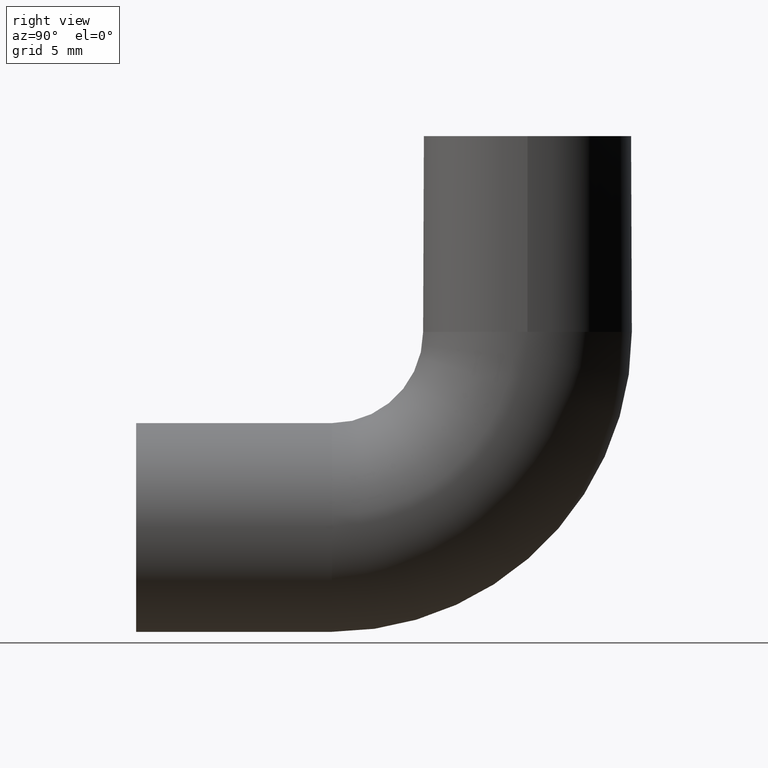
[diagram: clean part render]
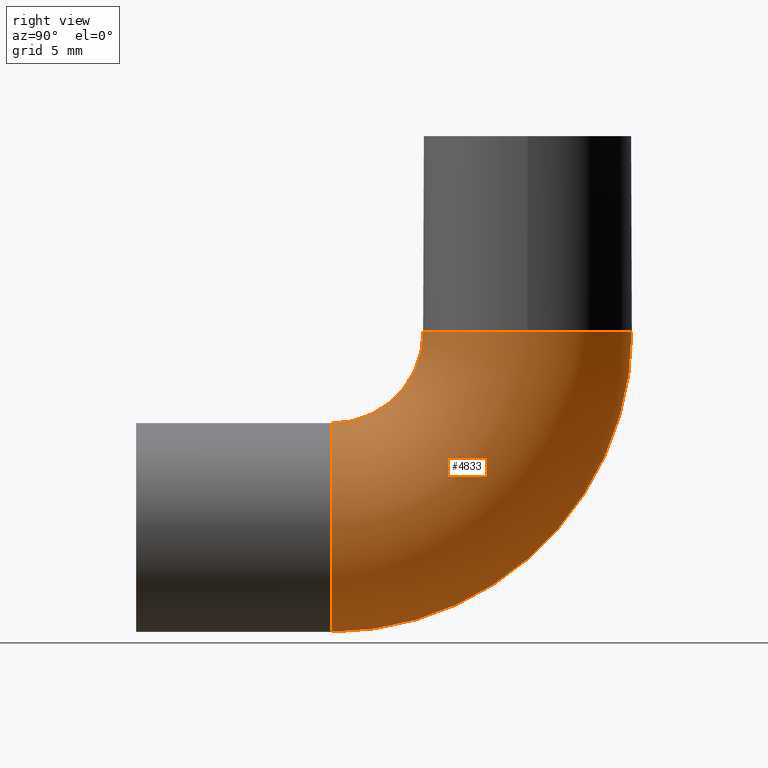
[diagram: same view with one face highlighted and labeled with its STEP entity id]
A machine part, right view. The second image highlights one B-rep face of the part: STEP entity #4833.
In plain terms, the highlighted toroidal blend (fillet) surface has major radius 15 mm and minor (blend) radius 8 mm.
Its self-contained STEP definition (entity closure, byte-faithful):
#563 = CARTESIAN_POINT ( 'NONE',  ( 0.000000000000000000, 14.99999999999999645, -7.999999999999998224 ) ) ;
#740 = CIRCLE ( 'NONE', #4934, 8.000000000000000000 ) ;
#875 = AXIS2_PLACEMENT_3D ( 'NONE', #4322, #11355, #1401 ) ;
#993 = EDGE_LOOP ( 'NONE', ( #9867, #8403, #11358, #11958, #6905 ) ) ;
#1401 = DIRECTION ( 'NONE',  ( 0.000000000000000000, 0.000000000000000000, -1.000000000000000000 ) ) ;
#1555 = DIRECTION ( 'NONE',  ( 0.000000000000000000, 0.000000000000000000, 1.000000000000000000 ) ) ;
#1575 = EDGE_CURVE ( 'NONE', #9186, #7072, #2949, .T. ) ;
#1638 = DIRECTION ( 'NONE',  ( 0.000000000000000000, 1.000000000000000000, 0.000000000000000000 ) ) ;
#1694 = AXIS2_PLACEMENT_3D ( 'NONE', #3631, #2590, #9631 ) ;
#1713 = CARTESIAN_POINT ( 'NONE',  ( 9.797174393178827630E-16, 14.99999999999999645, 8.000000000000001776 ) ) ;
#1806 = CARTESIAN_POINT ( 'NONE',  ( 0.000000000000000000, 37.99999999999999289, 15.00000000000000355 ) ) ;
#2323 = CARTESIAN_POINT ( 'NONE',  ( 8.000000000000000000, 29.99999999999999645, 15.00000000000000355 ) ) ;
#2421 = CARTESIAN_POINT ( 'NONE',  ( 0.000000000000000000, 29.99999999999999645, 15.00000000000000355 ) ) ;
#2590 = DIRECTION ( 'NONE',  ( 1.000000000000000000, 0.000000000000000000, 0.000000000000000000 ) ) ;
#2627 = CARTESIAN_POINT ( 'NONE',  ( 0.000000000000000000, 14.99999999999999645, 15.00000000000000000 ) ) ;
#2901 = CARTESIAN_POINT ( 'NONE',  ( -9.797174393178821713E-16, 21.99999999999999645, 15.00000000000000178 ) ) ;
#2949 = CIRCLE ( 'NONE', #5977, 8.000000000000000000 ) ;
#3027 = AXIS2_PLACEMENT_3D ( 'NONE', #2421, #7255, #4359 ) ;
#3101 = EDGE_CURVE ( 'NONE', #7219, #4598, #5836, .T. ) ;
#3112 = FACE_OUTER_BOUND ( 'NONE', #993, .T. ) ;
#3631 = CARTESIAN_POINT ( 'NONE',  ( -9.797174393178825657E-16, 14.99999999999999645, 15.00000000000000000 ) ) ;
#3798 = DIRECTION ( 'NONE',  ( 0.000000000000000000, -1.000000000000000000, -2.168404344971008868E-16 ) ) ;
#4322 = CARTESIAN_POINT ( 'NONE',  ( 0.000000000000000000, 14.99999999999999645, 15.00000000000000000 ) ) ;
#4359 = DIRECTION ( 'NONE',  ( 0.000000000000000000, -1.000000000000000000, -2.168404344971008868E-16 ) ) ;
#4596 = CARTESIAN_POINT ( 'NONE',  ( 0.000000000000000000, 14.99999999999999645, 1.734723475976808672E-15 ) ) ;
#4598 = VERTEX_POINT ( 'NONE', #1806 ) ;
#4647 = EDGE_CURVE ( 'NONE', #5341, #7219, #740, .T. ) ;
#4833 = ADVANCED_FACE ( 'NONE', ( #3112 ), #7769, .T. ) ;
#4934 = AXIS2_PLACEMENT_3D ( 'NONE', #5774, #9740, #3798 ) ;
#5341 = VERTEX_POINT ( 'NONE', #2901 ) ;
#5774 = CARTESIAN_POINT ( 'NONE',  ( 0.000000000000000000, 29.99999999999999645, 15.00000000000000355 ) ) ;
#5836 = CIRCLE ( 'NONE', #3027, 8.000000000000000000 ) ;
#5977 = AXIS2_PLACEMENT_3D ( 'NONE', #4596, #1638, #1555 ) ;
#6038 = EDGE_CURVE ( 'NONE', #9186, #5341, #6318, .T. ) ;
#6318 = CIRCLE ( 'NONE', #1694, 6.999999999999997335 ) ;
#6905 = ORIENTED_EDGE ( 'NONE', *, *, #6038, .F. ) ;
#7072 = VERTEX_POINT ( 'NONE', #563 ) ;
#7219 = VERTEX_POINT ( 'NONE', #2323 ) ;
#7255 = DIRECTION ( 'NONE',  ( 0.000000000000000000, -1.608122649676636601E-16, 1.000000000000000000 ) ) ;
#7769 = TOROIDAL_SURFACE ( 'NONE', #12494, 14.99999999999999822, 8.000000000000000000 ) ;
#8403 = ORIENTED_EDGE ( 'NONE', *, *, #11648, .T. ) ;
#9186 = VERTEX_POINT ( 'NONE', #1713 ) ;
#9461 = DIRECTION ( 'NONE',  ( 0.000000000000000000, 0.000000000000000000, -1.000000000000000000 ) ) ;
#9631 = DIRECTION ( 'NONE',  ( 0.000000000000000000, 0.000000000000000000, -1.000000000000000000 ) ) ;
#9740 = DIRECTION ( 'NONE',  ( 0.000000000000000000, -1.608122649676636601E-16, 1.000000000000000000 ) ) ;
#9867 = ORIENTED_EDGE ( 'NONE', *, *, #1575, .T. ) ;
#10152 = CIRCLE ( 'NONE', #875, 23.00000000000000000 ) ;
#11355 = DIRECTION ( 'NONE',  ( 1.000000000000000000, 0.000000000000000000, 0.000000000000000000 ) ) ;
#11358 = ORIENTED_EDGE ( 'NONE', *, *, #3101, .F. ) ;
#11568 = DIRECTION ( 'NONE',  ( 1.000000000000000000, 0.000000000000000000, 0.000000000000000000 ) ) ;
#11648 = EDGE_CURVE ( 'NONE', #7072, #4598, #10152, .T. ) ;
#11958 = ORIENTED_EDGE ( 'NONE', *, *, #4647, .F. ) ;
#12494 = AXIS2_PLACEMENT_3D ( 'NONE', #2627, #11568, #9461 ) ;